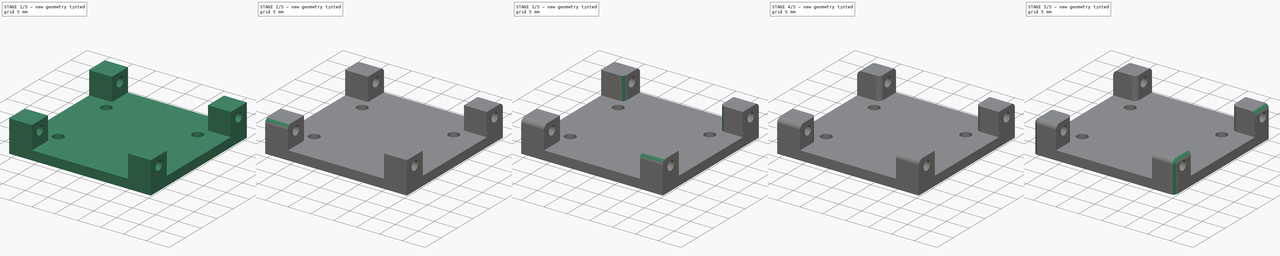
[diagram: build sequence overview — one tinted view per stage of 5, left to right]
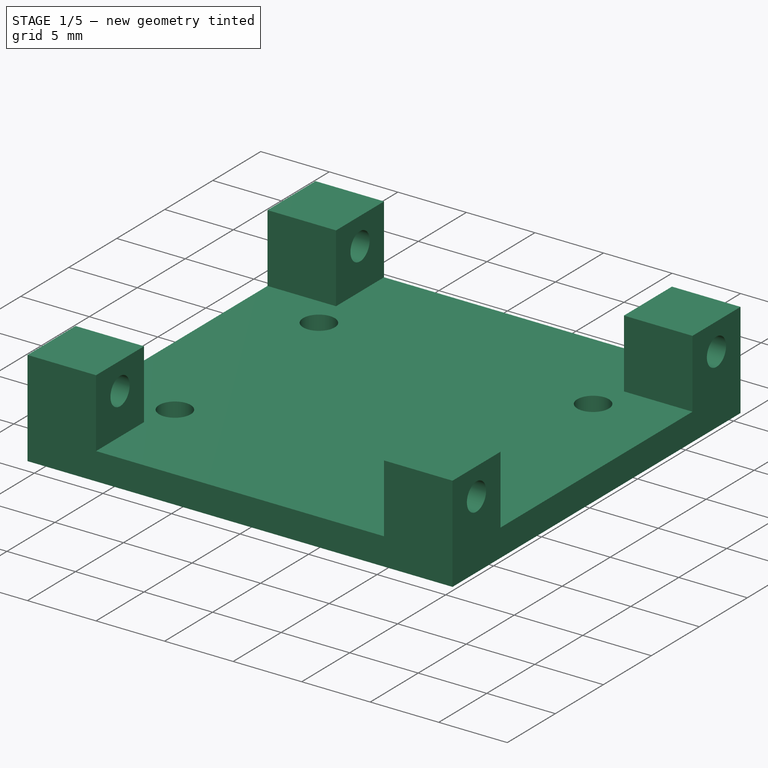
[diagram: stage 1 of 5 — iso view after this stage's code; geometry added in this stage tinted green]
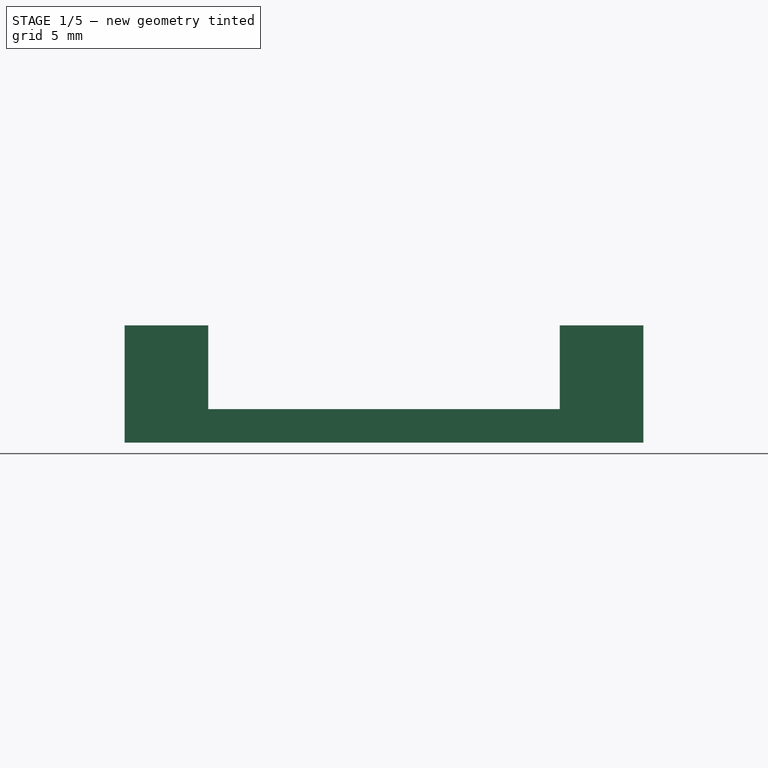
[diagram: stage 1 of 5 — front view after this stage's code; geometry added in this stage tinted green]
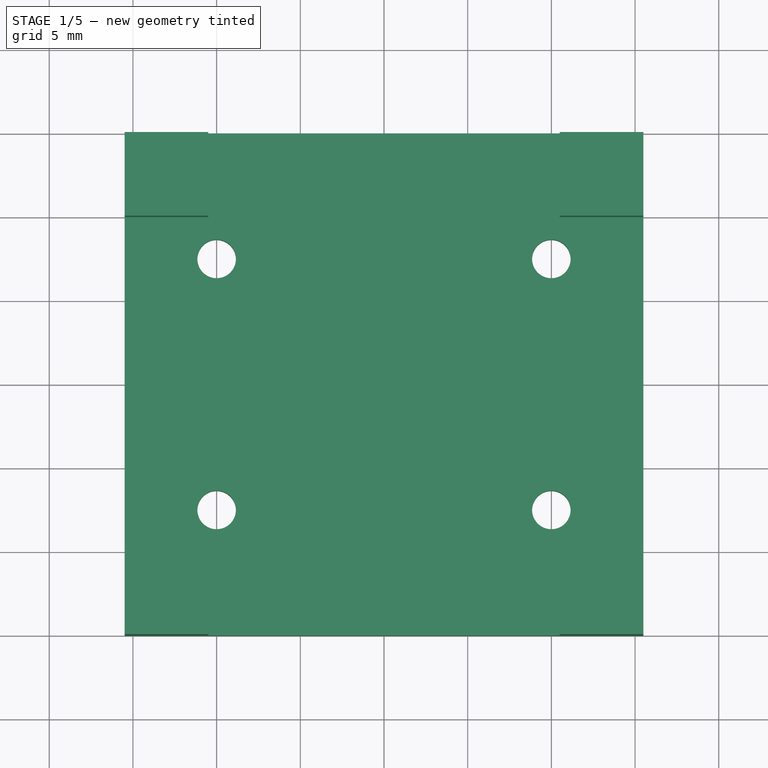
[diagram: stage 1 of 5 — top view after this stage's code; geometry added in this stage tinted green]
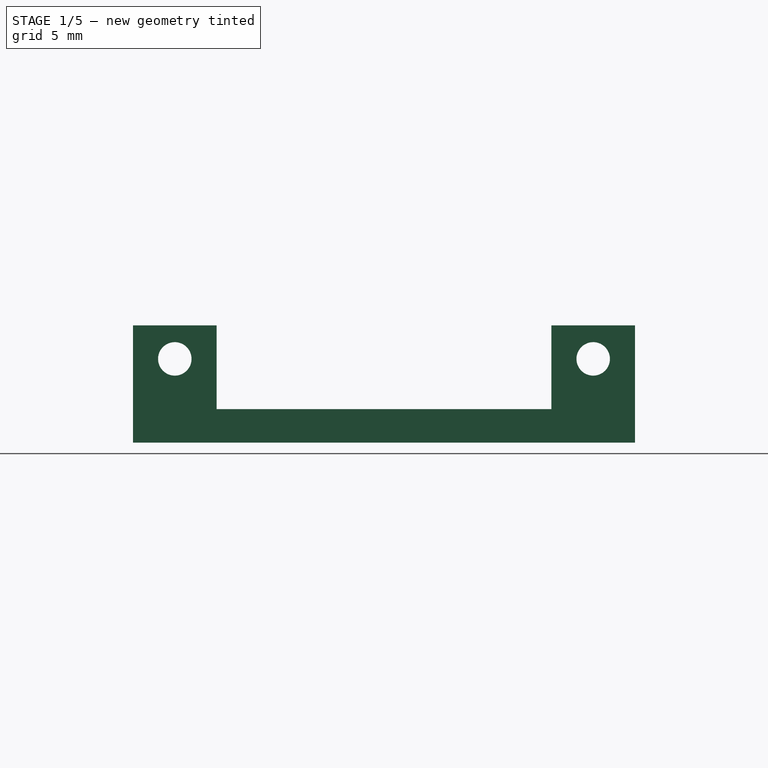
[diagram: stage 1 of 5 — right view after this stage's code; geometry added in this stage tinted green]
FCSTD DOCUMENT  (FreeCAD 0.20R29177 +426 (Git))
Label: headPlateSmallServo
License: All rights reserved
LicenseURL: http://en.wikipedia.org/wiki/All_rights_reserved
objects: PartDesign::Fillet×12, Sketcher::SketchObject×3, PartDesign::Pad×2, PartDesign::Pocket×1, PartDesign::Body×1
note: 34 computed .brp shape members not serialized (recipe doc carries the construction recipe); baked Part::Feature solids carry a one-line shape summary decoded from their .brp

FEATURE [Sketcher::SketchObject] Sketch
  FullyConstrained = true
  MapMode = 5
  Support = -> [XY_Plane]
  sketch-geometry (8):
    g0: LineSegment StartX=-15.5 StartY=15 StartZ=0 EndX=15.5 EndY=15 EndZ=0
    g1: LineSegment StartX=15.5 StartY=15 StartZ=0 EndX=15.5 EndY=-15 EndZ=0
    g2: LineSegment StartX=15.5 StartY=-15 StartZ=0 EndX=-15.5 EndY=-15 EndZ=0
    g3: LineSegment StartX=-15.5 StartY=-15 StartZ=0 EndX=-15.5 EndY=15 EndZ=0
    g4: Circle CenterX=-10 CenterY=7.5 CenterZ=0 NormalX=0 NormalY=0 NormalZ=1 AngleXU=0 Radius=1.15
    g5: Circle CenterX=-10 CenterY=-7.5 CenterZ=0 NormalX=0 NormalY=0 NormalZ=1 AngleXU=0 Radius=1.15
    g6: Circle CenterX=10 CenterY=7.5 CenterZ=0 NormalX=0 NormalY=0 NormalZ=1 AngleXU=0 Radius=1.15
    g7: Circle CenterX=10 CenterY=-7.5 CenterZ=0 NormalX=0 NormalY=0 NormalZ=1 AngleXU=0 Radius=1.15
  constraints (21):
    c: Coincident(g0,g1)
    c: Coincident(g1,g2)
    c: Coincident(g2,g3)
    c: Coincident(g3,g0)
    c: Horizontal(g0)
    c: Horizontal(g2)
    c: Vertical(g1)
    c: Vertical(g3)
    c: DistanceY(g1,g1) = 30
    c: DistanceX(g0,g0) = 31
    c: Symmetric(g0,g2,g-1)
    c: Equal(g6,g7)
    c: Equal(g6,g5)
    c: Equal(g6,g4)
    c: Diameter(g6) = 2.3
    c: Vertical(g6,g7)
    c: Horizontal(g5,g7)
    c: Symmetric(g4,g5,g-1)
    c: DistanceX(g4,g6) = 20
    c: Symmetric(g4,g6,g-2)
    c: DistanceY(g5,g4) = 15
FEATURE [PartDesign::Pad] Pad  label="basePlate"
  Direction = (0,0,1)
  Length = 2
  Length2 = 10
  Profile = -> Sketch
  ReferenceAxis = -> Sketch [N_Axis]
  Type = 0
FEATURE [Sketcher::SketchObject] Sketch001
  ExternalGeometry = -> [Pad]
  FullyConstrained = true
  MapMode = 5
  Placement = pos=(0,0,2) rot=(0,0,1;0rad)
  Support = -> [Pad]
  sketch-geometry (16):
    g0: LineSegment StartX=-15.5 StartY=15 StartZ=0 EndX=-10.5 EndY=15 EndZ=0
    g1: LineSegment StartX=-10.5 StartY=15 StartZ=0 EndX=-10.5 EndY=10 EndZ=0
    g2: LineSegment StartX=-10.5 StartY=10 StartZ=0 EndX=-15.5 EndY=10 EndZ=0
    g3: LineSegment StartX=-15.5 StartY=10 StartZ=0 EndX=-15.5 EndY=15 EndZ=0
    g4: LineSegment StartX=15.5 StartY=15 StartZ=0 EndX=10.5 EndY=15 EndZ=0
    g5: LineSegment StartX=10.5 StartY=15 StartZ=0 EndX=10.5 EndY=10 EndZ=0
    g6: LineSegment StartX=10.5 StartY=10 StartZ=0 EndX=15.5 EndY=10 EndZ=0
    g7: LineSegment StartX=15.5 StartY=10 StartZ=0 EndX=15.5 EndY=15 EndZ=0
    g8: LineSegment StartX=15.5 StartY=-15 StartZ=0 EndX=10.5 EndY=-15 EndZ=0
    g9: LineSegment StartX=10.5 StartY=-15 StartZ=0 EndX=10.5 EndY=-10 EndZ=0
    g10: LineSegment StartX=10.5 StartY=-10 StartZ=0 EndX=15.5 EndY=-10 EndZ=0
    g11: LineSegment StartX=15.5 StartY=-10 StartZ=0 EndX=15.5 EndY=-15 EndZ=0
    g12: LineSegment StartX=-15.5 StartY=-15 StartZ=0 EndX=-10.5 EndY=-15 EndZ=0
    g13: LineSegment StartX=-10.5 StartY=-15 StartZ=0 EndX=-10.5 EndY=-10 EndZ=0
    g14: LineSegment StartX=-10.5 StartY=-10 StartZ=0 EndX=-15.5 EndY=-10 EndZ=0
    g15: LineSegment StartX=-15.5 StartY=-10 StartZ=0 EndX=-15.5 EndY=-15 EndZ=0
  constraints (44):
    c: Coincident(g0,g1)
    c: Coincident(g1,g2)
    c: Coincident(g2,g3)
    c: Coincident(g3,g0)
    c: Horizontal(g0)
    c: Horizontal(g2)
    c: Vertical(g1)
    c: Vertical(g3)
    c: Coincident(g0,g-3)
    c: Coincident(g4,g5)
    c: Coincident(g5,g6)
    c: Coincident(g6,g7)
    c: Coincident(g7,g4)
    c: Horizontal(g4)
    c: Horizontal(g6)
    c: Vertical(g5)
    c: Vertical(g7)
    c: Coincident(g4,g-6)
    c: Coincident(g8,g9)
    c: Coincident(g9,g10)
    c: Coincident(g10,g11)
    c: Coincident(g11,g8)
    c: Horizontal(g8)
    c: Horizontal(g10)
    c: Vertical(g9)
    c: Vertical(g11)
    c: Coincident(g8,g-5)
    c: Coincident(g12,g13)
    c: Coincident(g13,g14)
    c: Coincident(g14,g15)
    c: Coincident(g15,g12)
    c: Horizontal(g12)
    c: Horizontal(g14)
    c: Vertical(g13)
    c: Vertical(g15)
    c: Coincident(g12,g-4)
    c: DistanceX(g0,g0) = 5
    c: Equal(g4,g0)
    c: Equal(g14,g0)
    c: Equal(g10,g0)
    c: DistanceY(g3,g3) = 5
    c: Equal(g3,g5)
    c: Equal(g3,g15)
    c: Equal(g3,g11)
FEATURE [PartDesign::Pad] Pad001  label="standOffs"
  BaseFeature = -> Pad
  Direction = (0,0,1)
  Length = 5
  Length2 = 10
  Profile = -> Sketch001
  ReferenceAxis = -> Sketch001 [N_Axis]
  Type = 0
FEATURE [Sketcher::SketchObject] Sketch002
  ExternalGeometry = -> [Pad001]
  FullyConstrained = true
  MapMode = 5
  Placement = pos=(-15.5,0,0) rot=(0.57735,-0.57735,-0.57735;2.0944rad)
  Support = -> [Pad001]
  sketch-geometry (4):
    g0: Circle CenterX=-12.5 CenterY=5 CenterZ=0 NormalX=0 NormalY=0 NormalZ=1 AngleXU=0 Radius=1
    g1: Circle CenterX=12.5 CenterY=5 CenterZ=0 NormalX=0 NormalY=0 NormalZ=1 AngleXU=0 Radius=1
    g2: GeomPoint X=-12.5 Y=7 Z=0
    g3: GeomPoint X=12.5 Y=7 Z=0
  constraints (8):
    c: Equal(g0,g1)
    c: Diameter(g0) = 2
    c: DistanceY(g0,g-4) = 2
    c: Horizontal(g0,g1)
    c: Symmetric(g-7,g-7,g2)
    c: Vertical(g2,g0)
    c: Symmetric(g-8,g-8,g3)
    c: Vertical(g3,g1)
FEATURE [PartDesign::Pocket] Pocket
  BaseFeature = -> Pad001
  Direction = (1,0,0)
  Length = 50
  Length2 = 5
  Profile = -> Sketch002
  ReferenceAxis = -> Sketch002 [N_Axis]
  Type = 0
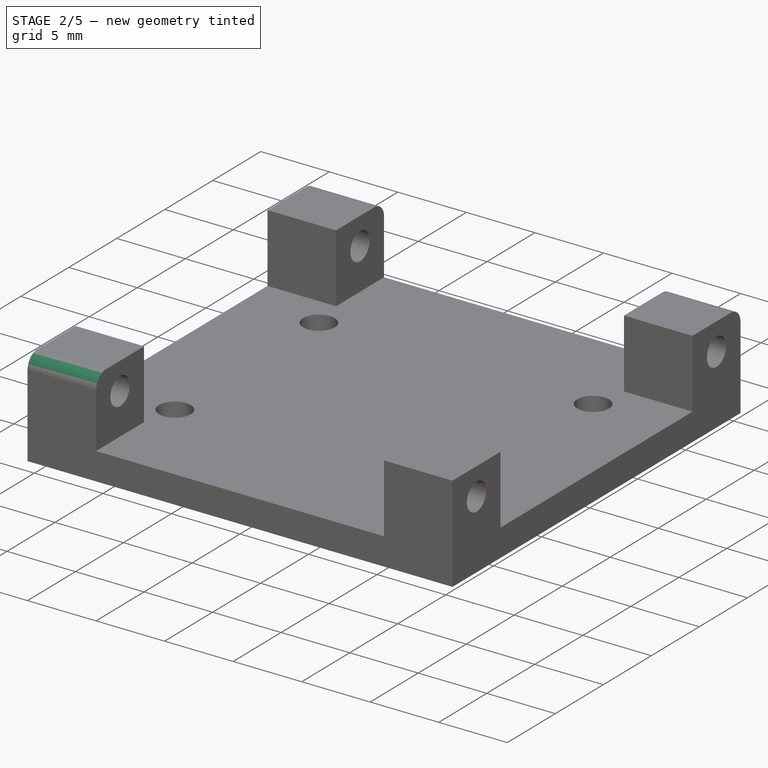
[diagram: stage 2 of 5 — iso view after this stage's code; geometry added in this stage tinted green]
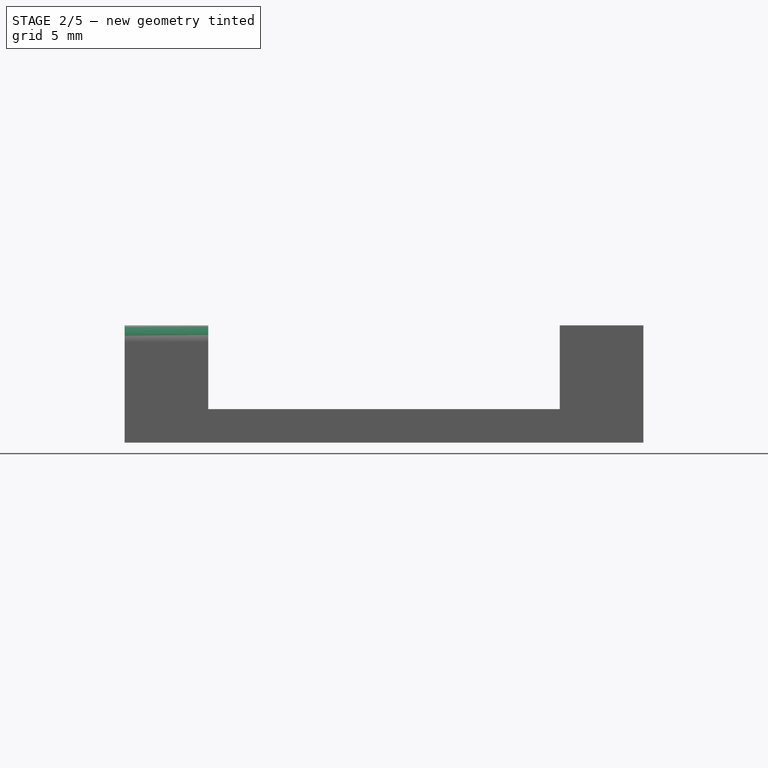
[diagram: stage 2 of 5 — front view after this stage's code; geometry added in this stage tinted green]
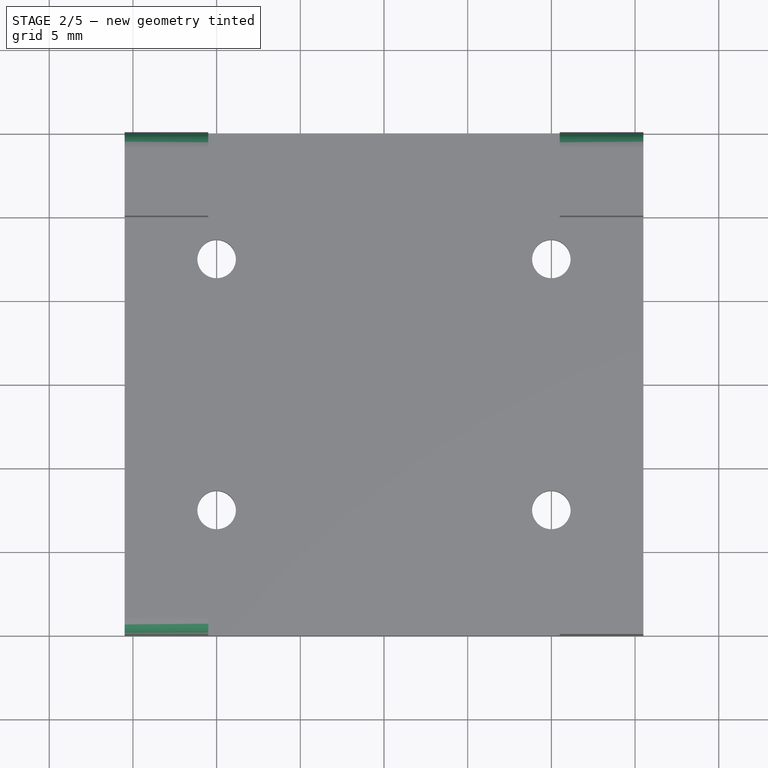
[diagram: stage 2 of 5 — top view after this stage's code; geometry added in this stage tinted green]
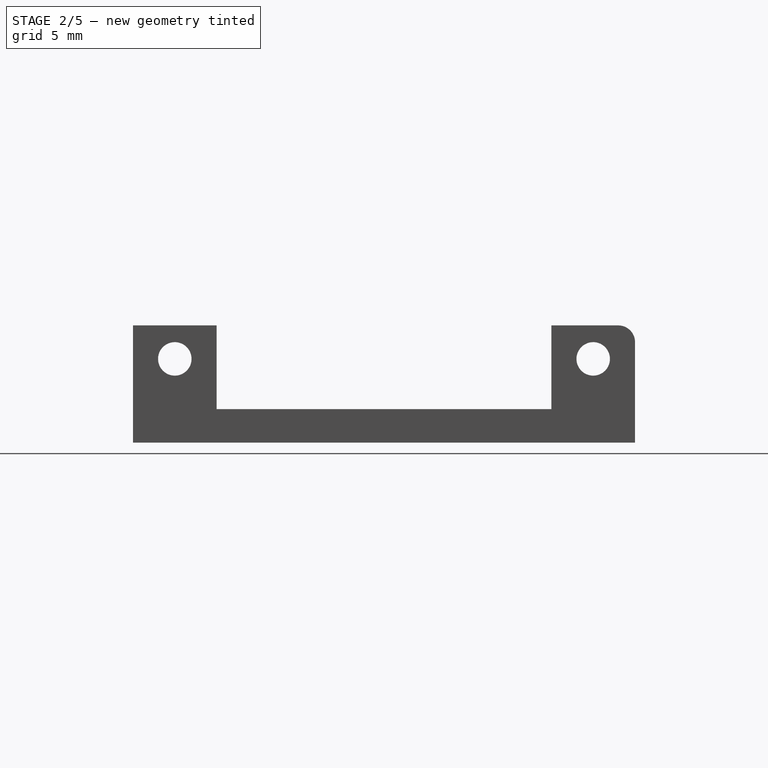
[diagram: stage 2 of 5 — right view after this stage's code; geometry added in this stage tinted green]
FEATURE [PartDesign::Fillet] Fillet
  Base = -> Pocket [Edge80]
  BaseFeature = -> Pocket
  Radius = 1
  SupportTransform = false
  UseAllEdges = false
FEATURE [PartDesign::Fillet] Fillet001
  Base = -> Fillet [Edge78]
  BaseFeature = -> Fillet
  Radius = 1
  SupportTransform = false
  UseAllEdges = false
FEATURE [PartDesign::Fillet] Fillet002
  Base = -> Fillet001 [Edge79]
  BaseFeature = -> Fillet001
  Radius = 1
  SupportTransform = false
  UseAllEdges = false
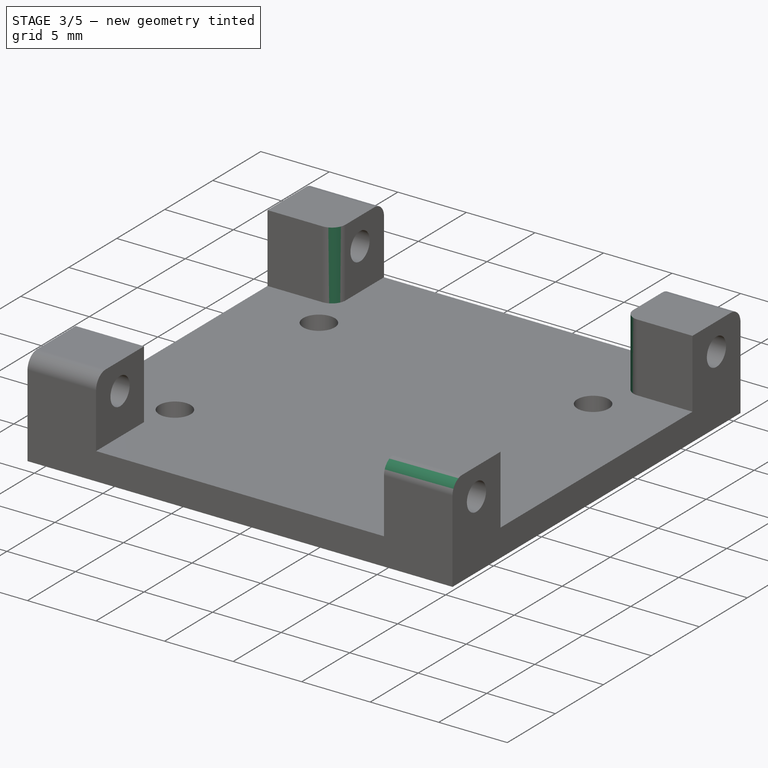
[diagram: stage 3 of 5 — iso view after this stage's code; geometry added in this stage tinted green]
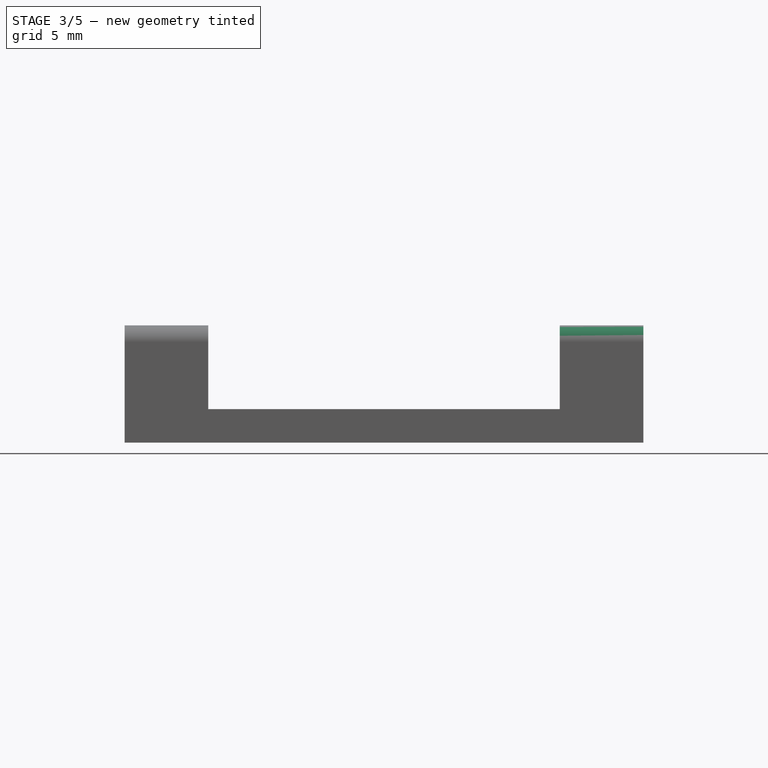
[diagram: stage 3 of 5 — front view after this stage's code; geometry added in this stage tinted green]
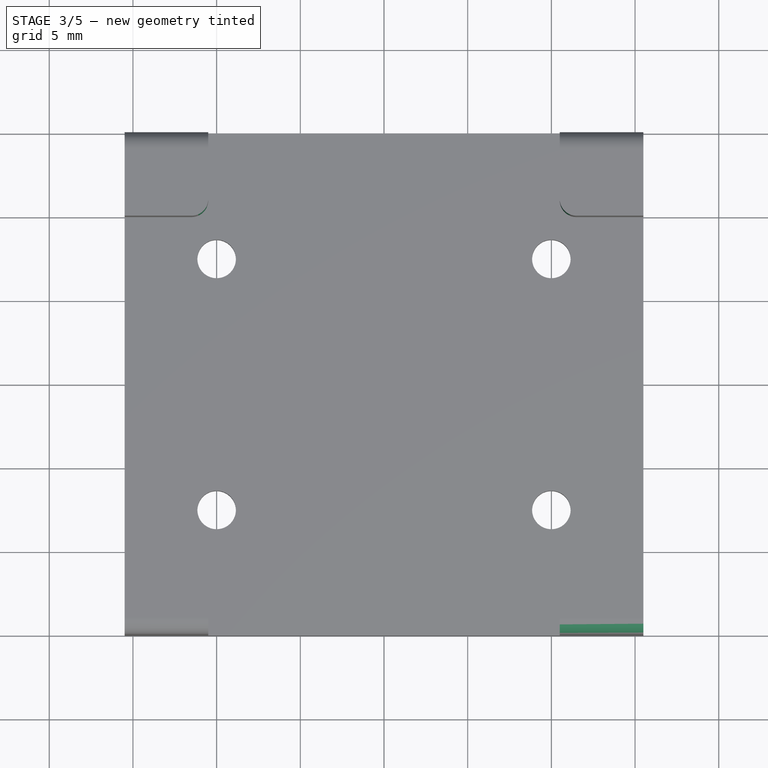
[diagram: stage 3 of 5 — top view after this stage's code; geometry added in this stage tinted green]
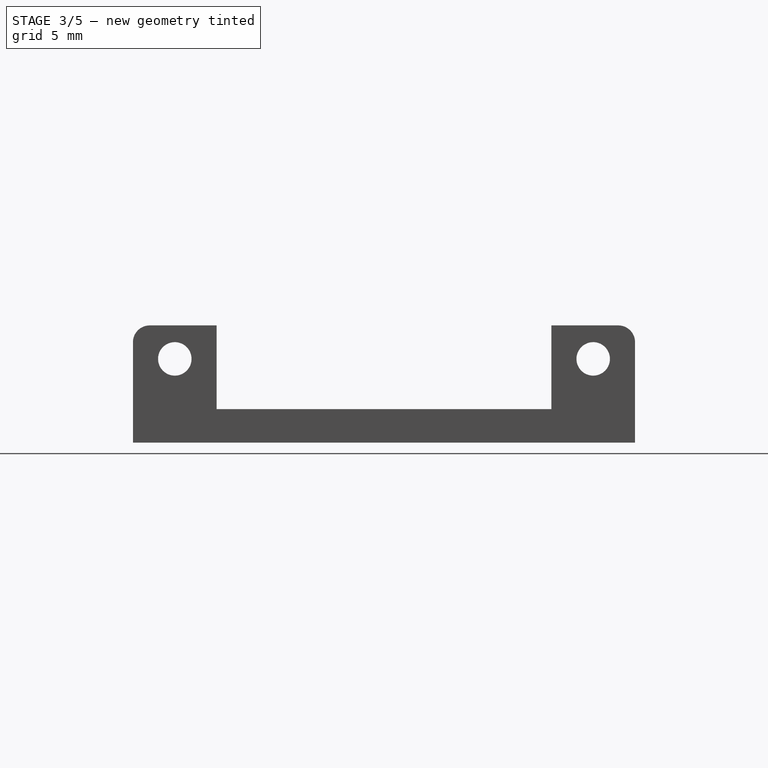
[diagram: stage 3 of 5 — right view after this stage's code; geometry added in this stage tinted green]
FEATURE [PartDesign::Fillet] Fillet003
  Base = -> Fillet002 [Edge80]
  BaseFeature = -> Fillet002
  Radius = 1
  SupportTransform = false
  UseAllEdges = false
FEATURE [PartDesign::Fillet] Fillet004
  Base = -> Fillet003 [Edge61]
  BaseFeature = -> Fillet003
  Radius = 1
  SupportTransform = false
  UseAllEdges = false
FEATURE [PartDesign::Fillet] Fillet005
  Base = -> Fillet004 [Edge46]
  BaseFeature = -> Fillet004
  Radius = 1
  SupportTransform = false
  UseAllEdges = false
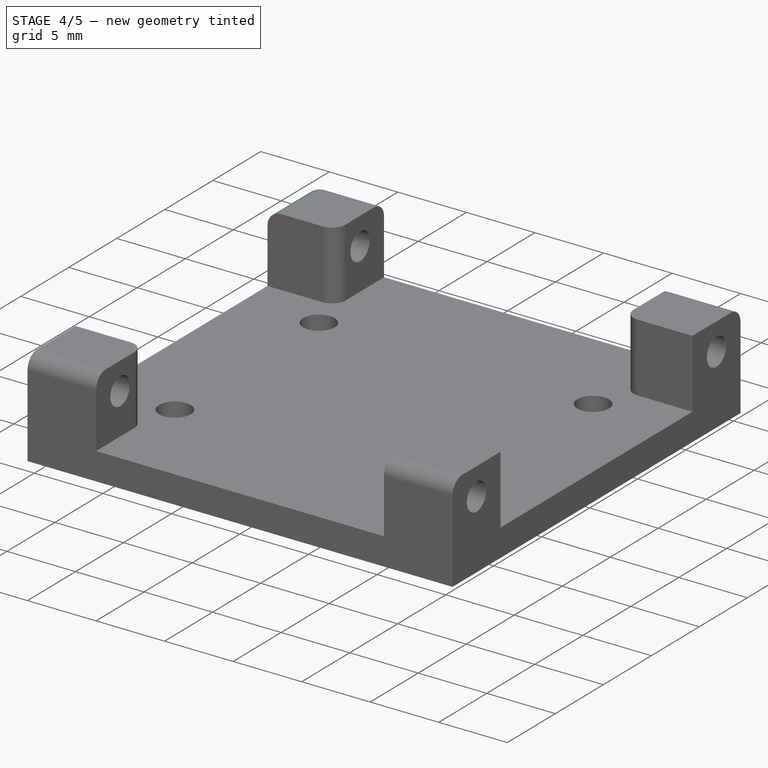
[diagram: stage 4 of 5 — iso view after this stage's code; geometry added in this stage tinted green]
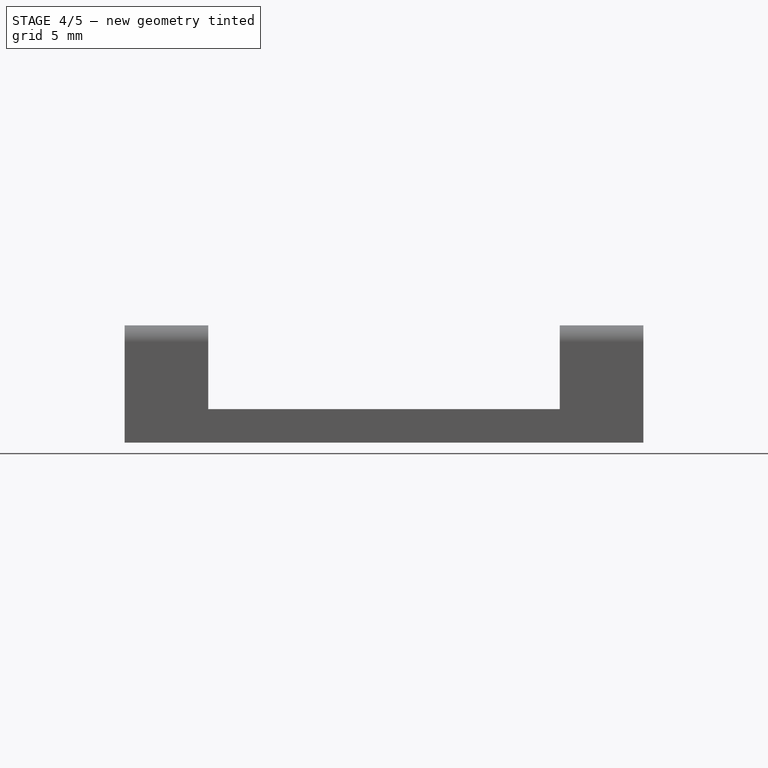
[diagram: stage 4 of 5 — front view after this stage's code; geometry added in this stage tinted green]
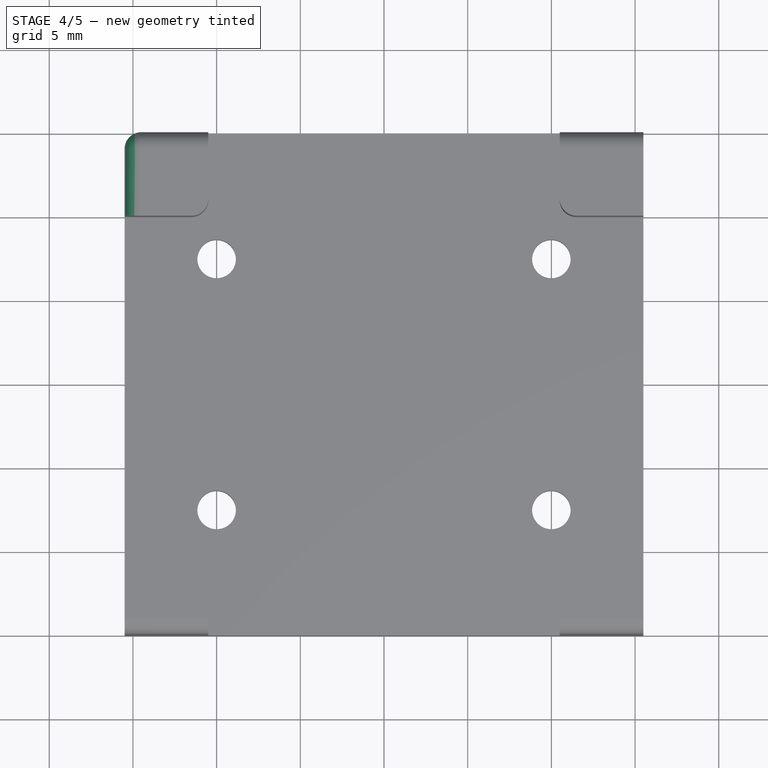
[diagram: stage 4 of 5 — top view after this stage's code; geometry added in this stage tinted green]
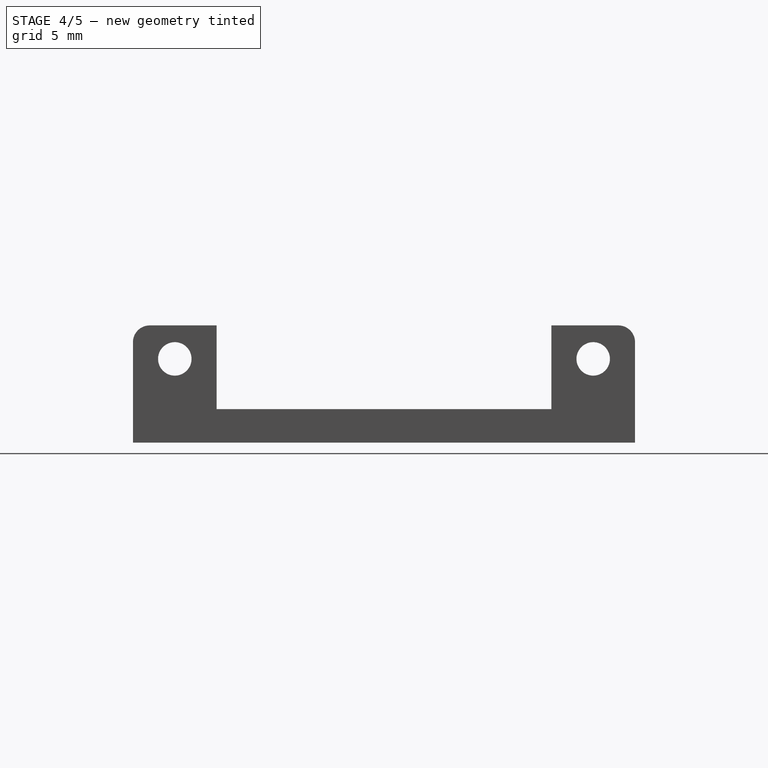
[diagram: stage 4 of 5 — right view after this stage's code; geometry added in this stage tinted green]
FEATURE [PartDesign::Fillet] Fillet006
  Base = -> Fillet005 [Edge44]
  BaseFeature = -> Fillet005
  Radius = 1
  SupportTransform = false
  UseAllEdges = false
FEATURE [PartDesign::Fillet] Fillet007
  Base = -> Fillet006 [Edge46]
  BaseFeature = -> Fillet006
  Radius = 1
  SupportTransform = false
  UseAllEdges = false
FEATURE [PartDesign::Fillet] Fillet008
  Base = -> Fillet007 [Edge97]
  BaseFeature = -> Fillet007
  Radius = 1
  SupportTransform = false
  UseAllEdges = false
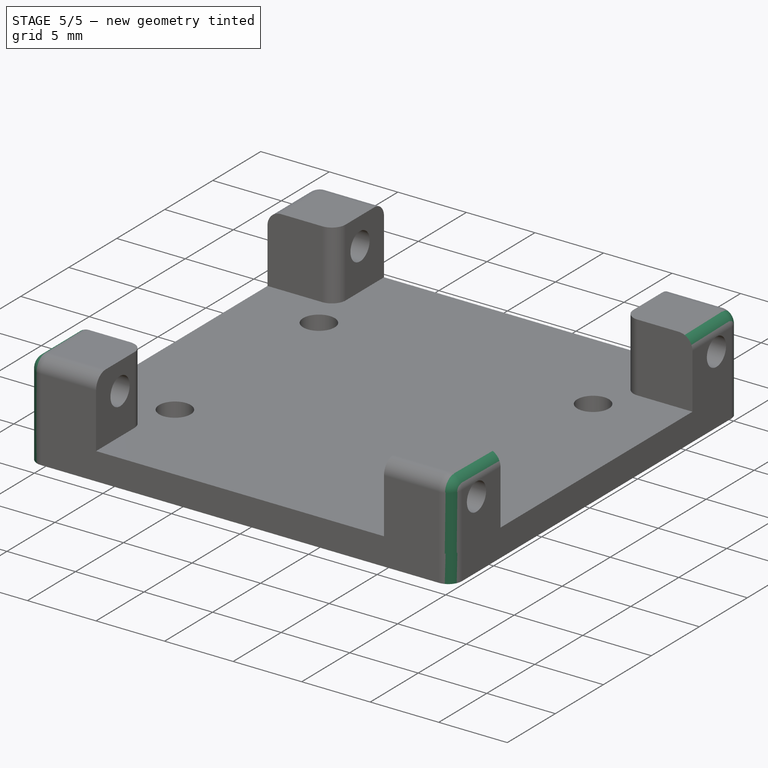
[diagram: stage 5 of 5 — iso view after this stage's code; geometry added in this stage tinted green]
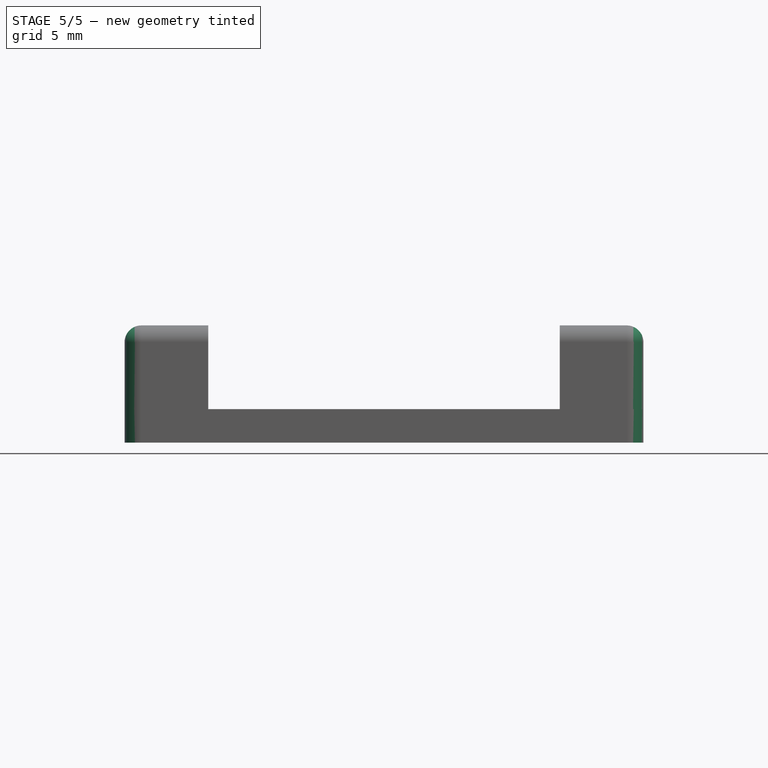
[diagram: stage 5 of 5 — front view after this stage's code; geometry added in this stage tinted green]
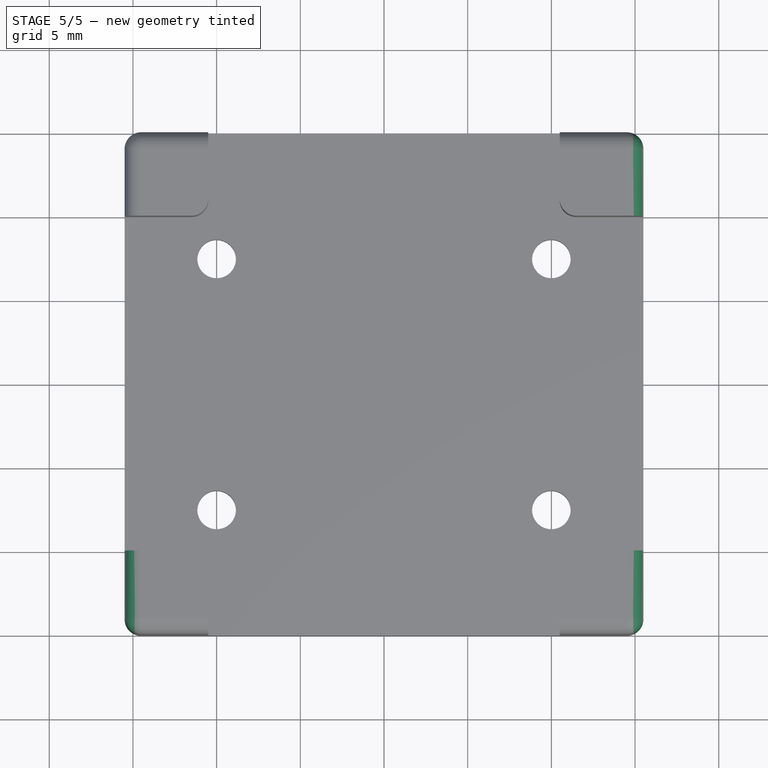
[diagram: stage 5 of 5 — top view after this stage's code; geometry added in this stage tinted green]
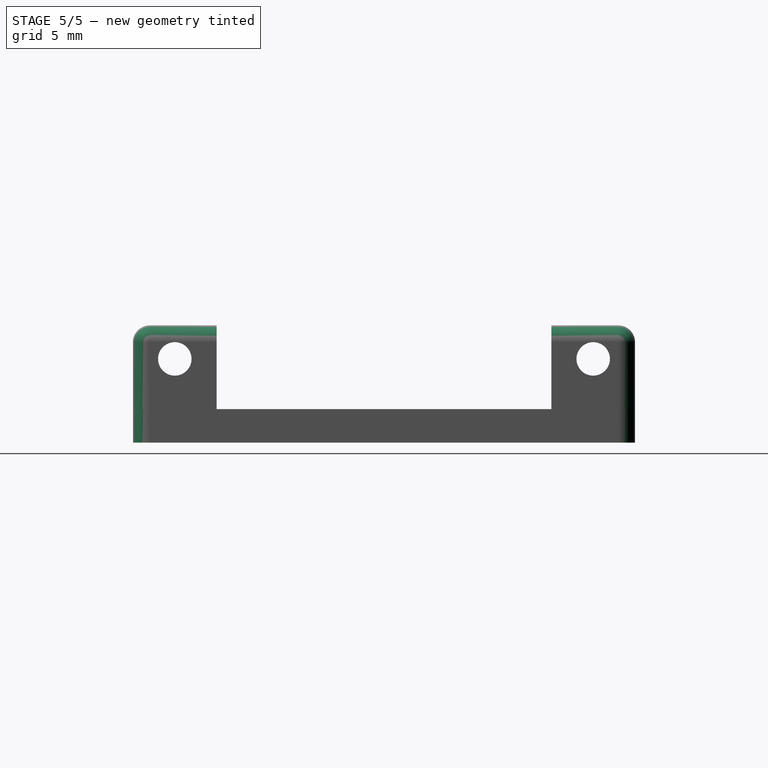
[diagram: stage 5 of 5 — right view after this stage's code; geometry added in this stage tinted green]
FEATURE [PartDesign::Fillet] Fillet009
  Base = -> Fillet008 [Edge29]
  BaseFeature = -> Fillet008
  Radius = 1
  SupportTransform = false
  UseAllEdges = false
FEATURE [PartDesign::Fillet] Fillet010
  Base = -> Fillet009 [Edge110]
  BaseFeature = -> Fillet009
  Radius = 1
  SupportTransform = false
  UseAllEdges = false
FEATURE [PartDesign::Fillet] Fillet011
  Base = -> Fillet010 [Edge71]
  BaseFeature = -> Fillet010
  Radius = 1
  SupportTransform = false
  UseAllEdges = false
FEATURE [PartDesign::Body] Body
  Group = -> [Sketch,Pad,Sketch001,Pad001,Sketch002,Pocket,Fillet,Fillet001,Fillet002,Fillet003,Fillet004,Fillet005,Fillet006,Fillet007,Fillet008,Fillet009,Fillet010,Fillet011]
  Origin = -> Origin
  Tip = -> Fillet011
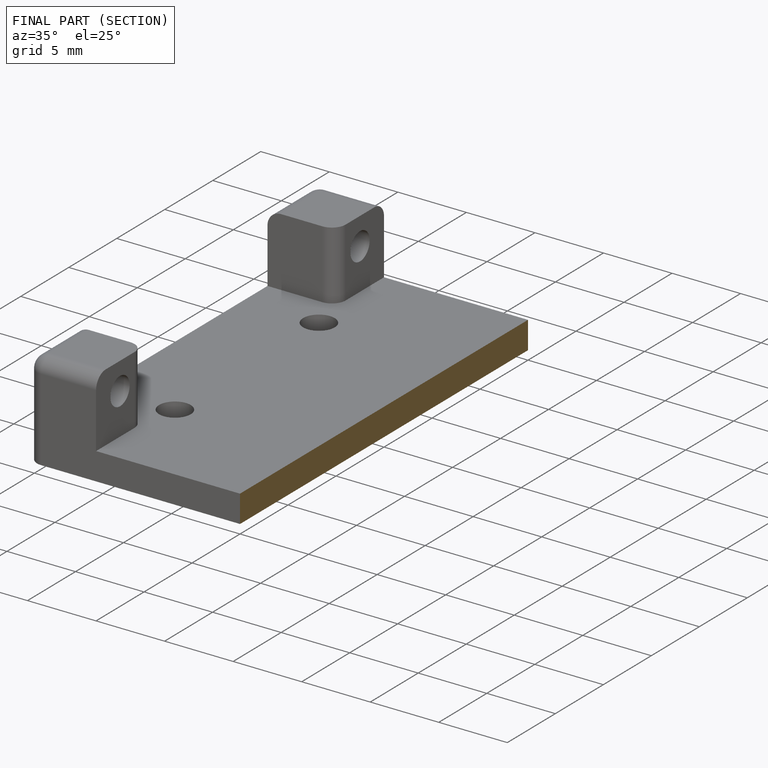
[diagram: finished part — half-section view (interior)]
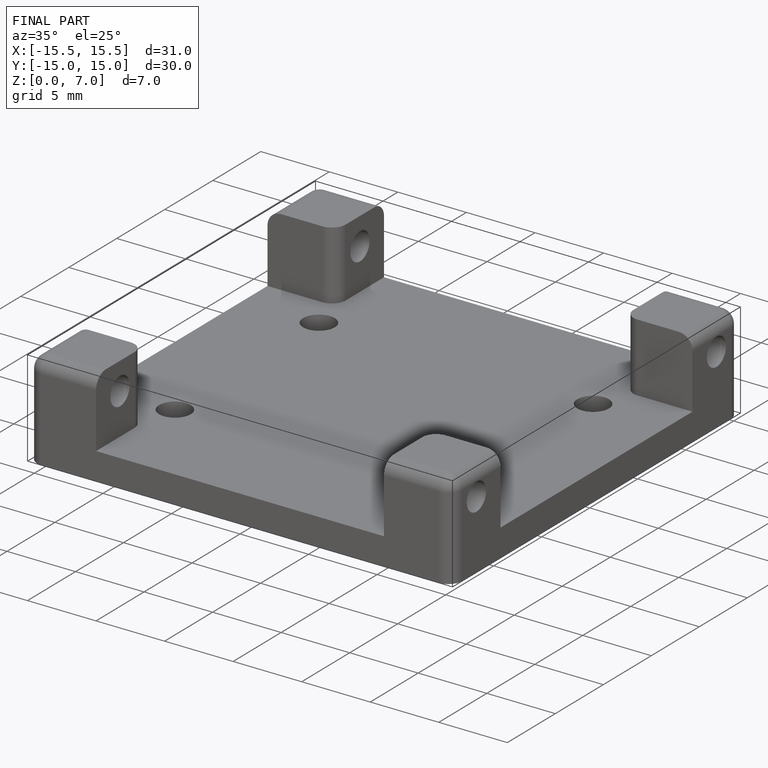
[diagram: finished part — iso view with bounding-box wireframe]
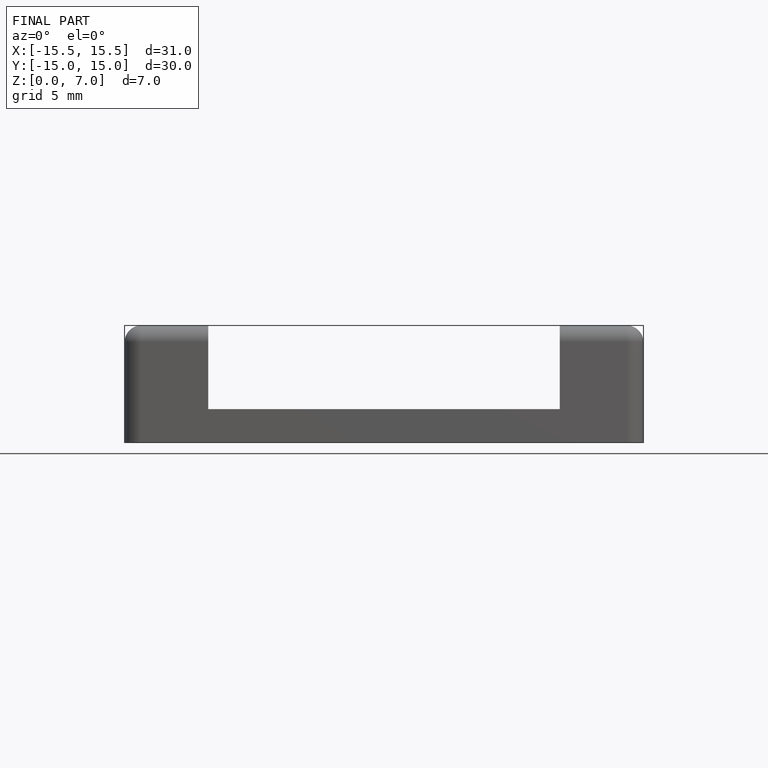
[diagram: finished part — front view with bounding-box wireframe]
